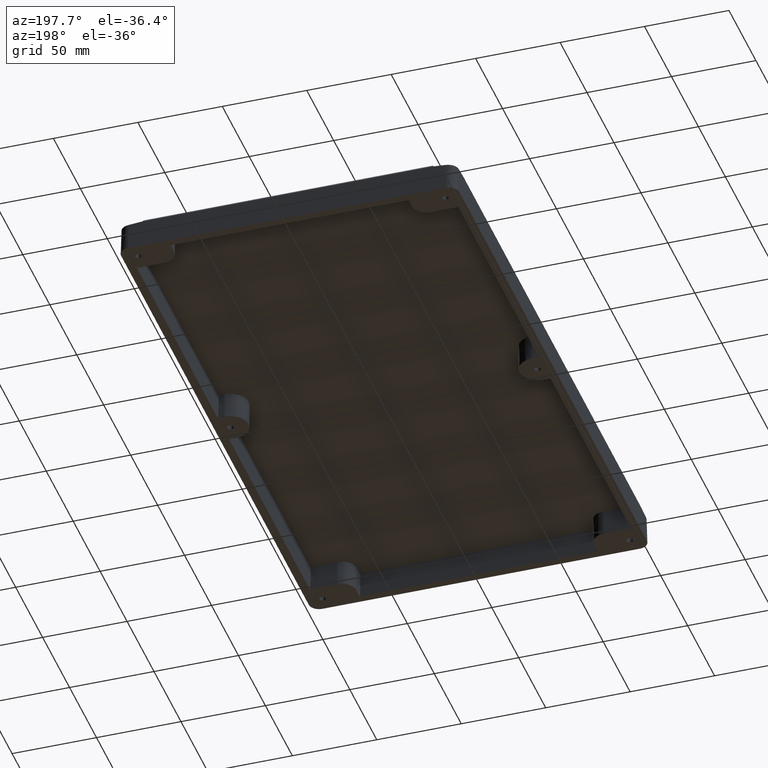
[diagram: clean part render]
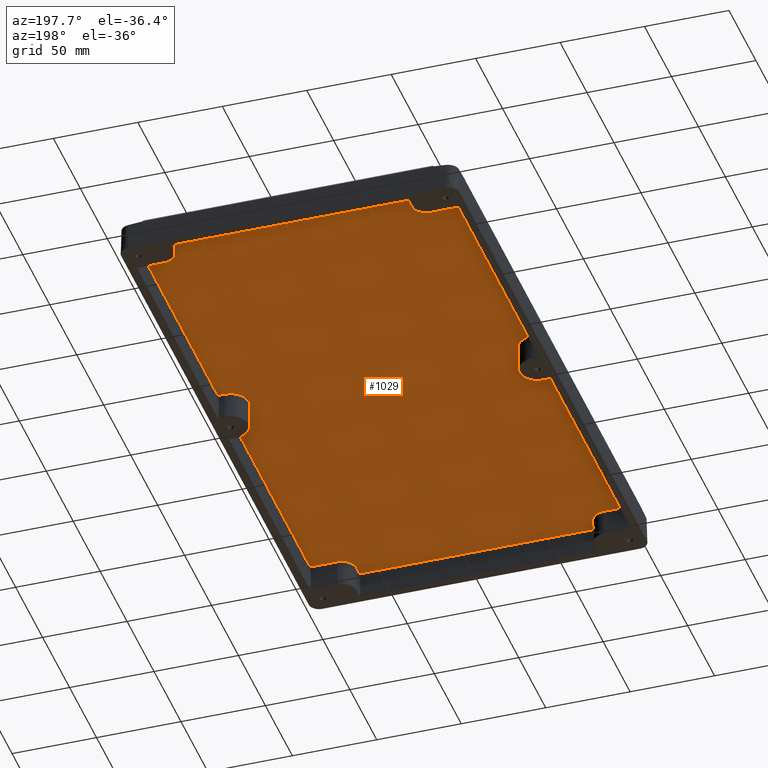
[diagram: same view with one face highlighted and labeled with its STEP entity id]
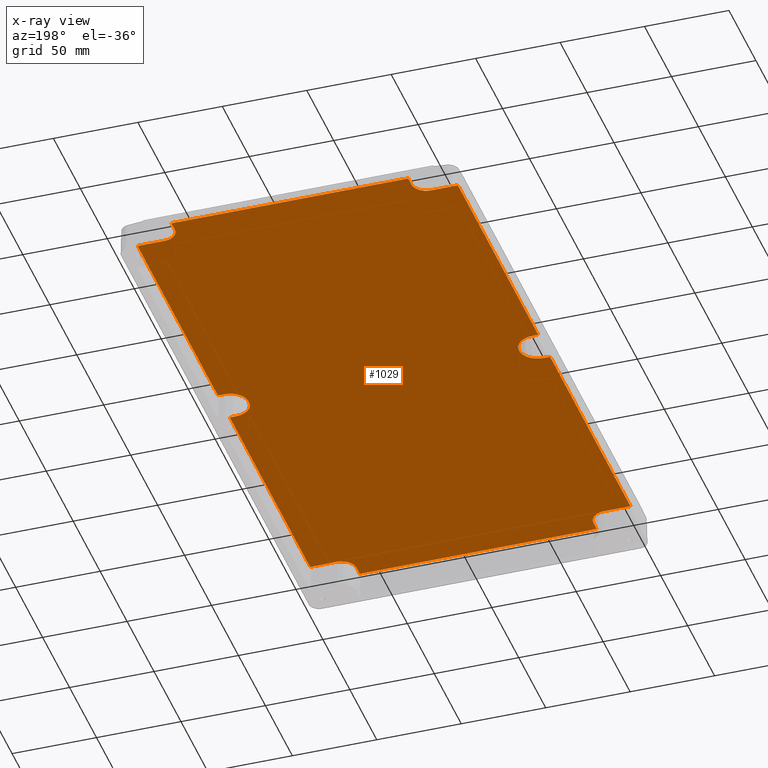
[diagram: x-ray of the same camera — body ghosted, the highlighted face saturated]
A machine part, auxiliary view. The second image highlights one B-rep face of the part: STEP entity #1029.
The next image is the same camera in x-ray: the body ghosted, the highlighted face saturated — about 0% of this face is hidden behind the body in this view.
In plain terms, the highlighted planar face has unit normal (0, 0, 1).
Its self-contained STEP definition (entity closure, byte-faithful):
#49 = CARTESIAN_POINT ( 'NONE',  ( -94.33461251617797000, 10.97546363624380900, 15.50000000000000200 ) ) ;
#115 = VERTEX_POINT ( 'NONE', #5978 ) ;
#130 = CARTESIAN_POINT ( 'NONE',  ( -94.62747959633624400, -160.1245363637562200, 15.50000000000000200 ) ) ;
#175 = AXIS2_PLACEMENT_3D ( 'NONE', #4598, #2398, #6143 ) ;
#218 = VECTOR ( 'NONE', #2260, 1000.000000000000000 ) ;
#223 = AXIS2_PLACEMENT_3D ( 'NONE', #5152, #1967, #5697 ) ;
#231 = ORIENTED_EDGE ( 'NONE', *, *, #4436, .F. ) ;
#260 = EDGE_CURVE ( 'NONE', #2906, #3631, #4735, .T. ) ;
#269 = CARTESIAN_POINT ( 'NONE',  ( 70.12453636375617800, 168.7999999999999800, 15.49999999999999800 ) ) ;
#293 = CARTESIAN_POINT ( 'NONE',  ( -70.12453636375617800, 174.3346125161779700, 15.50000000000000200 ) ) ;
#324 = CARTESIAN_POINT ( 'NONE',  ( -94.83453636375617200, 11.47538748382201300, 15.50000000000000200 ) ) ;
#411 = AXIS2_PLACEMENT_3D ( 'NONE', #1790, #5524, #2332 ) ;
#451 = ORIENTED_EDGE ( 'NONE', *, *, #4621, .F. ) ;
#483 = CARTESIAN_POINT ( 'NONE',  ( 94.62747959633624400, 10.97546363624381100, 15.50000000000000400 ) ) ;
#489 = CARTESIAN_POINT ( 'NONE',  ( -69.62461251617801800, 174.8345363637561700, 15.50000000000000200 ) ) ;
#507 = ORIENTED_EDGE ( 'NONE', *, *, #1366, .F. ) ;
#509 = EDGE_CURVE ( 'NONE', #3631, #4748, #4653, .T. ) ;
#545 = CARTESIAN_POINT ( 'NONE',  ( 90.94999999999998900, -10.97546363624380900, 15.50000000000000200 ) ) ;
#589 = CARTESIAN_POINT ( 'NONE',  ( 94.33461251617797000, 160.1245363637561600, 15.50000000000000200 ) ) ;
#596 = CARTESIAN_POINT ( 'NONE',  ( 70.12453636375619200, -174.6274795963362600, 15.50000000000000200 ) ) ;
#602 = EDGE_CURVE ( 'NONE', #3853, #2285, #4790, .T. ) ;
#639 = CARTESIAN_POINT ( 'NONE',  ( 94.33461251617798400, -160.1245363637561600, 15.50000000000000200 ) ) ;
#650 = VERTEX_POINT ( 'NONE', #5210 ) ;
#656 = CARTESIAN_POINT ( 'NONE',  ( 90.94999999999998900, 10.97546363624380700, 15.50000000000000200 ) ) ;
#725 = CIRCLE ( 'NONE', #3684, 8.675463636243801300 ) ;
#731 = ORIENTED_EDGE ( 'NONE', *, *, #2560, .F. ) ;
#739 = EDGE_CURVE ( 'NONE', #3184, #3524, #6172, .T. ) ;
#808 = CARTESIAN_POINT ( 'NONE',  ( -69.62461251617796200, -174.8345363637561700, 15.50000000000000200 ) ) ;
#812 = ORIENTED_EDGE ( 'NONE', *, *, #992, .F. ) ;
#827 = CIRCLE ( 'NONE', #3163, 8.675463636243815600 ) ;
#851 = VERTEX_POINT ( 'NONE', #639 ) ;
#912 = CARTESIAN_POINT ( 'NONE',  ( -94.33461251617799800, 160.1245363637561600, 15.50000000000000200 ) ) ;
#959 = EDGE_CURVE ( 'NONE', #2813, #1397, #989, .T. ) ;
#960 = EDGE_CURVE ( 'NONE', #5139, #851, #3741, .T. ) ;
#963 = LINE ( 'NONE', #2312, #5203 ) ;
#966 = VERTEX_POINT ( 'NONE', #808 ) ;
#975 = CARTESIAN_POINT ( 'NONE',  ( 94.62747959633621500, -10.97546363624382300, 15.50000000000000000 ) ) ;
#983 = VERTEX_POINT ( 'NONE', #3991 ) ;
#989 = LINE ( 'NONE', #1845, #1155 ) ;
#992 = EDGE_CURVE ( 'NONE', #4639, #4986, #827, .T. ) ;
#1011 = CARTESIAN_POINT ( 'NONE',  ( -78.79999999999999700, 160.1245363637561600, 15.49999999999999800 ) ) ;
#1029 = ADVANCED_FACE ( 'NONE', ( #4891 ), #3006, .F. ) ;
#1130 = DIRECTION ( 'NONE',  ( 1.000000000000000000, -0.0000000000000000000, -0.0000000000000000000 ) ) ;
#1155 = VECTOR ( 'NONE', #5569, 1000.000000000000000 ) ;
#1178 = CARTESIAN_POINT ( 'NONE',  ( 94.33461251617797000, -10.97546363624380900, 15.50000000000000200 ) ) ;
#1186 = LINE ( 'NONE', #545, #5092 ) ;
#1211 = ORIENTED_EDGE ( 'NONE', *, *, #5146, .T. ) ;
#1225 =( BOUNDED_CURVE ( )  B_SPLINE_CURVE ( 3, ( #2928, #6141, #1363, #5083 ),
 .UNSPECIFIED., .F., .T. ) 
 B_SPLINE_CURVE_WITH_KNOTS ( ( 4, 4 ),
 ( 2.356346783439880400, 3.926838523739650400 ),
 .UNSPECIFIED. ) 
 CURVE ( )  GEOMETRIC_REPRESENTATION_ITEM ( )  RATIONAL_B_SPLINE_CURVE ( ( 1.000000000000000000, 0.8048096403827772500, 0.8048096403827772500, 1.000000000000000000 ) ) 
 REPRESENTATION_ITEM ( '' )  );
#1294 = ORIENTED_EDGE ( 'NONE', *, *, #4531, .F. ) ;
#1315 = CARTESIAN_POINT ( 'NONE',  ( 94.83453636375618600, -159.9174795963362200, 15.49999999999999600 ) ) ;
#1329 = EDGE_CURVE ( 'NONE', #3602, #3153, #2741, .T. ) ;
#1351 = ORIENTED_EDGE ( 'NONE', *, *, #6663, .F. ) ;
#1363 = CARTESIAN_POINT ( 'NONE',  ( -70.12453636375617800, -174.6274795963362600, 15.50000000000000200 ) ) ;
#1366 = EDGE_CURVE ( 'NONE', #6537, #2653, #1840, .T. ) ;
#1380 = CARTESIAN_POINT ( 'NONE',  ( 70.12453636375616400, 174.6274795963362300, 15.49999999999999800 ) ) ;
#1391 = VERTEX_POINT ( 'NONE', #6473 ) ;
#1397 = VERTEX_POINT ( 'NONE', #2737 ) ;
#1415 = VECTOR ( 'NONE', #5880, 1000.000000000000000 ) ;
#1470 = ORIENTED_EDGE ( 'NONE', *, *, #6044, .T. ) ;
#1477 = EDGE_CURVE ( 'NONE', #1550, #983, #6190, .T. ) ;
#1544 = CIRCLE ( 'NONE', #2812, 10.97546363624381300 ) ;
#1545 = ORIENTED_EDGE ( 'NONE', *, *, #5038, .F. ) ;
#1550 = VERTEX_POINT ( 'NONE', #1861 ) ;
#1560 = CARTESIAN_POINT ( 'NONE',  ( -94.83453636375617200, 11.47538748382201300, 15.50000000000000200 ) ) ;
#1569 = CARTESIAN_POINT ( 'NONE',  ( -90.94999999999998900, -10.97546363624380900, 15.50000000000000200 ) ) ;
#1600 = CARTESIAN_POINT ( 'NONE',  ( -69.91747959633629300, 174.8345363637561700, 15.50000000000000200 ) ) ;
#1621 = LINE ( 'NONE', #5626, #5724 ) ;
#1630 = EDGE_CURVE ( 'NONE', #6820, #3128, #1729, .T. ) ;
#1635 = CARTESIAN_POINT ( 'NONE',  ( 70.42999999999999300, -174.8345363637561700, 15.50000000000000200 ) ) ;
#1659 = VECTOR ( 'NONE', #6545, 1000.000000000000000 ) ;
#1692 = CARTESIAN_POINT ( 'NONE',  ( -94.83453636375617200, -159.6246125161780200, 15.50000000000000200 ) ) ;
#1701 = CARTESIAN_POINT ( 'NONE',  ( -94.33461251617797000, -160.1245363637561600, 15.50000000000000200 ) ) ;
#1729 =( BOUNDED_CURVE ( )  B_SPLINE_CURVE ( 3, ( #5334, #4786, #1600, #2144 ),
 .UNSPECIFIED., .F., .T. ) 
 B_SPLINE_CURVE_WITH_KNOTS ( ( 4, 4 ),
 ( 2.356346783439880400, 3.926838523739650400 ),
 .UNSPECIFIED. ) 
 CURVE ( )  GEOMETRIC_REPRESENTATION_ITEM ( )  RATIONAL_B_SPLINE_CURVE ( ( 1.000000000000000000, 0.8048096403827772500, 0.8048096403827772500, 1.000000000000000000 ) ) 
 REPRESENTATION_ITEM ( '' )  );
#1732 = CARTESIAN_POINT ( 'NONE',  ( -94.83453636375618600, -159.9174795963362500, 15.50000000000000200 ) ) ;
#1737 = VERTEX_POINT ( 'NONE', #1692 ) ;
#1743 = VERTEX_POINT ( 'NONE', #1178 ) ;
#1779 = CARTESIAN_POINT ( 'NONE',  ( -94.33461251617797000, -160.1245363637561600, 15.50000000000000200 ) ) ;
#1790 = CARTESIAN_POINT ( 'NONE',  ( 78.79999999999999700, -168.7999999999999800, 15.50000000000000200 ) ) ;
#1794 = EDGE_CURVE ( 'NONE', #650, #4639, #4495, .T. ) ;
#1833 = CARTESIAN_POINT ( 'NONE',  ( -78.79999999999999700, -160.1245363637561600, 15.50000000000000200 ) ) ;
#1840 = LINE ( 'NONE', #5921, #5594 ) ;
#1845 = CARTESIAN_POINT ( 'NONE',  ( -70.12453636375617800, -175.1399999999999900, 15.50000000000000200 ) ) ;
#1846 = CARTESIAN_POINT ( 'NONE',  ( -70.12453636375617800, 175.1399999999999900, 15.50000000000000200 ) ) ;
#1855 = EDGE_CURVE ( 'NONE', #5139, #2576, #4152, .T. ) ;
#1861 = CARTESIAN_POINT ( 'NONE',  ( 70.12453636375617800, -168.7999999999999800, 15.50000000000000200 ) ) ;
#1869 = DIRECTION ( 'NONE',  ( 0.0000000000000000000, 1.000000000000000000, -0.0000000000000000000 ) ) ;
#1907 = CARTESIAN_POINT ( 'NONE',  ( -90.94999999999998900, 0.0000000000000000000, 15.50000000000000200 ) ) ;
#1933 = CARTESIAN_POINT ( 'NONE',  ( -78.79999999999999700, 160.1245363637561600, 15.50000000000000200 ) ) ;
#1939 = EDGE_CURVE ( 'NONE', #3405, #1550, #2577, .T. ) ;
#1957 = EDGE_CURVE ( 'NONE', #966, #1397, #1225, .T. ) ;
#1967 = DIRECTION ( 'NONE',  ( 0.0000000000000000000, 0.0000000000000000000, 1.000000000000000000 ) ) ;
#1976 = CARTESIAN_POINT ( 'NONE',  ( -94.83453636375617200, -11.47538748382201300, 15.50000000000000200 ) ) ;
#2007 = VERTEX_POINT ( 'NONE', #4595 ) ;
#2041 = CARTESIAN_POINT ( 'NONE',  ( 94.33461251617797000, -10.97546363624380900, 15.50000000000000200 ) ) ;
#2083 = ORIENTED_EDGE ( 'NONE', *, *, #1939, .F. ) ;
#2104 = DIRECTION ( 'NONE',  ( -1.000000000000000000, -0.0000000000000000000, -0.0000000000000000000 ) ) ;
#2106 = CARTESIAN_POINT ( 'NONE',  ( 70.42999999999999300, 174.8345363637561700, 15.50000000000000200 ) ) ;
#2114 = ORIENTED_EDGE ( 'NONE', *, *, #5475, .F. ) ;
#2117 = EDGE_CURVE ( 'NONE', #4986, #2285, #2820, .T. ) ;
#2144 = CARTESIAN_POINT ( 'NONE',  ( -69.62461251617801800, 174.8345363637561700, 15.50000000000000200 ) ) ;
#2163 = CARTESIAN_POINT ( 'NONE',  ( 70.12453636375617800, 174.3346125161780300, 15.50000000000000200 ) ) ;
#2175 = ORIENTED_EDGE ( 'NONE', *, *, #6869, .F. ) ;
#2192 = CARTESIAN_POINT ( 'NONE',  ( 70.12453636375617800, -174.3346125161780000, 15.50000000000000200 ) ) ;
#2209 = CARTESIAN_POINT ( 'NONE',  ( 94.83453636375617200, 159.6246125161779900, 15.50000000000000200 ) ) ;
#2245 = ORIENTED_EDGE ( 'NONE', *, *, #1329, .T. ) ;
#2260 = DIRECTION ( 'NONE',  ( 1.000000000000000000, 4.140151493978061200E-016, -0.0000000000000000000 ) ) ;
#2273 = CARTESIAN_POINT ( 'NONE',  ( -78.79999999999999700, 168.7999999999999800, 15.50000000000000200 ) ) ;
#2285 = VERTEX_POINT ( 'NONE', #2163 ) ;
#2312 = CARTESIAN_POINT ( 'NONE',  ( -90.94999999999998900, 10.97546363624380900, 15.50000000000000200 ) ) ;
#2320 = ORIENTED_EDGE ( 'NONE', *, *, #2602, .F. ) ;
#2332 = DIRECTION ( 'NONE',  ( 1.000000000000000000, 0.0000000000000000000, 0.0000000000000000000 ) ) ;
#2358 = CARTESIAN_POINT ( 'NONE',  ( -78.79999999999999700, -168.7999999999999800, 15.50000000000000200 ) ) ;
#2373 = DIRECTION ( 'NONE',  ( -0.0000000000000000000, -1.000000000000000000, 0.0000000000000000000 ) ) ;
#2398 = DIRECTION ( 'NONE',  ( -0.0000000000000000000, -0.0000000000000000000, -1.000000000000000000 ) ) ;
#2407 = ORIENTED_EDGE ( 'NONE', *, *, #959, .F. ) ;
#2418 = CARTESIAN_POINT ( 'NONE',  ( 69.91747959633622100, 174.8345363637562000, 15.49999999999999800 ) ) ;
#2438 = DIRECTION ( 'NONE',  ( 1.000000000000000000, 0.0000000000000000000, 0.0000000000000000000 ) ) ;
#2496 = VERTEX_POINT ( 'NONE', #1833 ) ;
#2505 = CARTESIAN_POINT ( 'NONE',  ( -94.62747959633624400, -10.97546363624381300, 15.50000000000000200 ) ) ;
#2550 = LINE ( 'NONE', #3318, #6462 ) ;
#2560 = EDGE_CURVE ( 'NONE', #966, #1391, #2814, .T. ) ;
#2570 = ORIENTED_EDGE ( 'NONE', *, *, #4320, .T. ) ;
#2576 = VERTEX_POINT ( 'NONE', #2695 ) ;
#2577 = LINE ( 'NONE', #4520, #5085 ) ;
#2602 = EDGE_CURVE ( 'NONE', #983, #851, #5190, .T. ) ;
#2640 = DIRECTION ( 'NONE',  ( -1.000000000000000000, -0.0000000000000000000, -0.0000000000000000000 ) ) ;
#2653 = VERTEX_POINT ( 'NONE', #3296 ) ;
#2695 = CARTESIAN_POINT ( 'NONE',  ( 94.83453636375617200, -11.47538748382201300, 15.50000000000000200 ) ) ;
#2737 = CARTESIAN_POINT ( 'NONE',  ( -70.12453636375617800, -174.3346125161780300, 15.50000000000000200 ) ) ;
#2741 =( BOUNDED_CURVE ( )  B_SPLINE_CURVE ( 3, ( #5563, #6689, #3471, #324 ),
 .UNSPECIFIED., .F., .T. ) 
 B_SPLINE_CURVE_WITH_KNOTS ( ( 4, 4 ),
 ( 2.356346783439935900, 3.926838523739660600 ),
 .UNSPECIFIED. ) 
 CURVE ( )  GEOMETRIC_REPRESENTATION_ITEM ( )  RATIONAL_B_SPLINE_CURVE ( ( 1.000000000000000000, 0.8048096403827879100, 0.8048096403827879100, 1.000000000000000000 ) ) 
 REPRESENTATION_ITEM ( '' )  );
#2761 = DIRECTION ( 'NONE',  ( -0.0000000000000000000, -1.000000000000000000, 0.0000000000000000000 ) ) ;
#2802 = DIRECTION ( 'NONE',  ( 1.000000000000000000, 0.0000000000000000000, 0.0000000000000000000 ) ) ;
#2812 = AXIS2_PLACEMENT_3D ( 'NONE', #6126, #2920, #6650 ) ;
#2813 = VERTEX_POINT ( 'NONE', #3389 ) ;
#2814 = LINE ( 'NONE', #1635, #1415 ) ;
#2820 = LINE ( 'NONE', #3607, #5320 ) ;
#2881 =( BOUNDED_CURVE ( )  B_SPLINE_CURVE ( 3, ( #3624, #6761, #483, #4174 ),
 .UNSPECIFIED., .F., .T. ) 
 B_SPLINE_CURVE_WITH_KNOTS ( ( 4, 4 ),
 ( 2.356346783439925700, 3.926838523739650400 ),
 .UNSPECIFIED. ) 
 CURVE ( )  GEOMETRIC_REPRESENTATION_ITEM ( )  RATIONAL_B_SPLINE_CURVE ( ( 1.000000000000000000, 0.8048096403827879100, 0.8048096403827879100, 1.000000000000000000 ) ) 
 REPRESENTATION_ITEM ( '' )  );
#2887 = DIRECTION ( 'NONE',  ( 1.000000000000000000, 0.0000000000000000000, 0.0000000000000000000 ) ) ;
#2902 = CARTESIAN_POINT ( 'NONE',  ( 94.62747959633625800, -160.1245363637561900, 15.49999999999999600 ) ) ;
#2906 = VERTEX_POINT ( 'NONE', #3503 ) ;
#2909 = ORIENTED_EDGE ( 'NONE', *, *, #509, .F. ) ;
#2920 = DIRECTION ( 'NONE',  ( -0.0000000000000000000, -0.0000000000000000000, -1.000000000000000000 ) ) ;
#2928 = CARTESIAN_POINT ( 'NONE',  ( -69.62461251617796200, -174.8345363637561700, 15.50000000000000200 ) ) ;
#2946 = CARTESIAN_POINT ( 'NONE',  ( 78.79999999999999700, 168.7999999999999800, 15.50000000000000200 ) ) ;
#2970 = LINE ( 'NONE', #2106, #4210 ) ;
#3006 = PLANE ( 'NONE',  #223 ) ;
#3016 = CARTESIAN_POINT ( 'NONE',  ( -94.83453636375618600, 159.6246125161779600, 15.50000000000000200 ) ) ;
#3075 = ORIENTED_EDGE ( 'NONE', *, *, #5115, .T. ) ;
#3091 = CARTESIAN_POINT ( 'NONE',  ( 94.83453636375617200, -11.47538748382201300, 15.50000000000000200 ) ) ;
#3110 = ORIENTED_EDGE ( 'NONE', *, *, #1855, .F. ) ;
#3128 = VERTEX_POINT ( 'NONE', #489 ) ;
#3153 = VERTEX_POINT ( 'NONE', #1560 ) ;
#3163 = AXIS2_PLACEMENT_3D ( 'NONE', #2946, #6693, #3478 ) ;
#3178 = ORIENTED_EDGE ( 'NONE', *, *, #739, .F. ) ;
#3180 = CARTESIAN_POINT ( 'NONE',  ( 94.33461251617798400, 10.97546363624380900, 15.50000000000000200 ) ) ;
#3184 = VERTEX_POINT ( 'NONE', #4253 ) ;
#3246 = CARTESIAN_POINT ( 'NONE',  ( 69.62461251617799000, -174.8345363637561700, 15.50000000000000200 ) ) ;
#3296 = CARTESIAN_POINT ( 'NONE',  ( 94.83453636375617200, 159.6246125161779900, 15.50000000000000200 ) ) ;
#3318 = CARTESIAN_POINT ( 'NONE',  ( -78.79999999999999700, -160.1245363637561600, 15.50000000000000200 ) ) ;
#3389 = CARTESIAN_POINT ( 'NONE',  ( -70.12453636375617800, -168.7999999999999800, 15.49999999999999800 ) ) ;
#3405 = VERTEX_POINT ( 'NONE', #5523 ) ;
#3407 = ORIENTED_EDGE ( 'NONE', *, *, #1957, .T. ) ;
#3428 = AXIS2_PLACEMENT_3D ( 'NONE', #2273, #6008, #2802 ) ;
#3445 = LINE ( 'NONE', #1846, #4548 ) ;
#3471 = CARTESIAN_POINT ( 'NONE',  ( -94.83453636375615800, 11.18252040366376200, 15.50000000000000000 ) ) ;
#3478 = DIRECTION ( 'NONE',  ( 1.000000000000000000, 0.0000000000000000000, 0.0000000000000000000 ) ) ;
#3503 = CARTESIAN_POINT ( 'NONE',  ( -79.97453636375617200, 0.0000000000000000000, 15.50000000000000200 ) ) ;
#3524 = VERTEX_POINT ( 'NONE', #1011 ) ;
#3554 = ORIENTED_EDGE ( 'NONE', *, *, #960, .T. ) ;
#3578 = EDGE_CURVE ( 'NONE', #1743, #6415, #1186, .T. ) ;
#3602 = VERTEX_POINT ( 'NONE', #49 ) ;
#3607 = CARTESIAN_POINT ( 'NONE',  ( 70.12453636375617800, 168.7999999999999800, 15.50000000000000200 ) ) ;
#3624 = CARTESIAN_POINT ( 'NONE',  ( 94.83453636375617200, 11.47538748382200400, 15.50000000000000200 ) ) ;
#3631 = VERTEX_POINT ( 'NONE', #5914 ) ;
#3642 = EDGE_CURVE ( 'NONE', #650, #2653, #6814, .T. ) ;
#3684 = AXIS2_PLACEMENT_3D ( 'NONE', #2358, #6098, #2887 ) ;
#3741 =( BOUNDED_CURVE ( )  B_SPLINE_CURVE ( 3, ( #5027, #1315, #2902, #6639 ),
 .UNSPECIFIED., .F., .T. ) 
 B_SPLINE_CURVE_WITH_KNOTS ( ( 4, 4 ),
 ( 2.356346783439880800, 3.926838523739649900 ),
 .UNSPECIFIED. ) 
 CURVE ( )  GEOMETRIC_REPRESENTATION_ITEM ( )  RATIONAL_B_SPLINE_CURVE ( ( 1.000000000000000000, 0.8048096403827775800, 0.8048096403827775800, 1.000000000000000000 ) ) 
 REPRESENTATION_ITEM ( '' )  );
#3790 = CARTESIAN_POINT ( 'NONE',  ( -94.83453636375617200, -160.4299999999999800, 15.50000000000000200 ) ) ;
#3853 = VERTEX_POINT ( 'NONE', #6128 ) ;
#3854 = ORIENTED_EDGE ( 'NONE', *, *, #1794, .F. ) ;
#3933 = ORIENTED_EDGE ( 'NONE', *, *, #260, .F. ) ;
#3962 = CARTESIAN_POINT ( 'NONE',  ( -90.94999999999998900, 10.97546363624380900, 15.50000000000000200 ) ) ;
#3979 = CARTESIAN_POINT ( 'NONE',  ( 78.79999999999999700, 160.1245363637561400, 15.50000000000000200 ) ) ;
#3991 = CARTESIAN_POINT ( 'NONE',  ( 78.79999999999999700, -160.1245363637561600, 15.49999999999999800 ) ) ;
#4019 = DIRECTION ( 'NONE',  ( 9.266685234918844100E-017, -1.000000000000000000, -0.0000000000000000000 ) ) ;
#4079 = EDGE_CURVE ( 'NONE', #2007, #4748, #6478, .T. ) ;
#4082 = CARTESIAN_POINT ( 'NONE',  ( -94.62747959633625800, 160.1245363637561600, 15.50000000000000200 ) ) ;
#4104 = VERTEX_POINT ( 'NONE', #6784 ) ;
#4125 = CIRCLE ( 'NONE', #6482, 10.97546363624381300 ) ;
#4152 = LINE ( 'NONE', #6066, #6831 ) ;
#4157 = DIRECTION ( 'NONE',  ( 0.0000000000000000000, 1.000000000000000000, -0.0000000000000000000 ) ) ;
#4174 = CARTESIAN_POINT ( 'NONE',  ( 94.33461251617798400, 10.97546363624380900, 15.50000000000000200 ) ) ;
#4196 = ORIENTED_EDGE ( 'NONE', *, *, #4079, .T. ) ;
#4197 =( BOUNDED_CURVE ( )  B_SPLINE_CURVE ( 3, ( #1701, #130, #1732, #5457 ),
 .UNSPECIFIED., .F., .T. ) 
 B_SPLINE_CURVE_WITH_KNOTS ( ( 4, 4 ),
 ( 2.356346783439908300, 3.926838523739649900 ),
 .UNSPECIFIED. ) 
 CURVE ( )  GEOMETRIC_REPRESENTATION_ITEM ( )  RATIONAL_B_SPLINE_CURVE ( ( 1.000000000000000000, 0.8048096403827840200, 0.8048096403827840200, 1.000000000000000000 ) ) 
 REPRESENTATION_ITEM ( '' )  );
#4210 = VECTOR ( 'NONE', #2640, 1000.000000000000000 ) ;
#4219 = CARTESIAN_POINT ( 'NONE',  ( 94.83453636375617200, 11.47538748382200400, 15.50000000000000200 ) ) ;
#4252 = DIRECTION ( 'NONE',  ( -1.000000000000000000, -0.0000000000000000000, -0.0000000000000000000 ) ) ;
#4253 = CARTESIAN_POINT ( 'NONE',  ( -70.12453636375617800, 168.7999999999999800, 15.50000000000000200 ) ) ;
#4301 = VERTEX_POINT ( 'NONE', #6408 ) ;
#4320 = EDGE_CURVE ( 'NONE', #3405, #1391, #6015, .T. ) ;
#4436 = EDGE_CURVE ( 'NONE', #5446, #2496, #2550, .T. ) ;
#4457 =( BOUNDED_CURVE ( )  B_SPLINE_CURVE ( 3, ( #2041, #975, #6307, #3091 ),
 .UNSPECIFIED., .F., .F. ) 
 B_SPLINE_CURVE_WITH_KNOTS ( ( 4, 4 ),
 ( 2.356346783439935900, 3.926838523739660600 ),
 .UNSPECIFIED. ) 
 CURVE ( )  GEOMETRIC_REPRESENTATION_ITEM ( )  RATIONAL_B_SPLINE_CURVE ( ( 1.000000000000000000, 0.8048096403827879100, 0.8048096403827879100, 1.000000000000000000 ) ) 
 REPRESENTATION_ITEM ( '' )  );
#4493 = EDGE_LOOP ( 'NONE', ( #6752, #1211, #3110, #3554, #2320, #4549, #2083, #2570, #731, #3407, #2407, #2114, #231, #6486, #5122, #4196, #2909, #3933, #1545, #4584, #2245, #5885, #3075, #2175, #3178, #1294, #5390, #4771, #6724, #6833, #812, #3854, #5675, #507, #1470, #1351, #451 ) ) ;
#4495 = LINE ( 'NONE', #6024, #1659 ) ;
#4520 = CARTESIAN_POINT ( 'NONE',  ( 70.12453636375617800, -175.1399999999999900, 15.50000000000000200 ) ) ;
#4531 = EDGE_CURVE ( 'NONE', #6820, #3184, #3445, .T. ) ;
#4548 = VECTOR ( 'NONE', #2373, 1000.000000000000000 ) ;
#4549 = ORIENTED_EDGE ( 'NONE', *, *, #1477, .F. ) ;
#4552 =( BOUNDED_CURVE ( )  B_SPLINE_CURVE ( 3, ( #3016, #6225, #4082, #912 ),
 .UNSPECIFIED., .F., .T. ) 
 B_SPLINE_CURVE_WITH_KNOTS ( ( 4, 4 ),
 ( 2.356346783439880400, 3.926838523739650400 ),
 .UNSPECIFIED. ) 
 CURVE ( )  GEOMETRIC_REPRESENTATION_ITEM ( )  RATIONAL_B_SPLINE_CURVE ( ( 1.000000000000000000, 0.8048096403827772500, 0.8048096403827772500, 1.000000000000000000 ) ) 
 REPRESENTATION_ITEM ( '' )  );
#4563 = CARTESIAN_POINT ( 'NONE',  ( 69.62461251617797600, 174.8345363637561700, 15.50000000000000200 ) ) ;
#4584 = ORIENTED_EDGE ( 'NONE', *, *, #5856, .F. ) ;
#4595 = CARTESIAN_POINT ( 'NONE',  ( -94.83453636375617200, -11.47538748382201300, 15.50000000000000200 ) ) ;
#4598 = CARTESIAN_POINT ( 'NONE',  ( -90.94999999999998900, 0.0000000000000000000, 15.50000000000000200 ) ) ;
#4621 = EDGE_CURVE ( 'NONE', #6415, #115, #1544, .T. ) ;
#4639 = VERTEX_POINT ( 'NONE', #3979 ) ;
#4653 = LINE ( 'NONE', #1569, #6077 ) ;
#4679 = VECTOR ( 'NONE', #5662, 1000.000000000000000 ) ;
#4682 = CARTESIAN_POINT ( 'NONE',  ( 94.83453636375617200, -159.6246125161779600, 15.50000000000000200 ) ) ;
#4735 = CIRCLE ( 'NONE', #175, 10.97546363624381300 ) ;
#4748 = VERTEX_POINT ( 'NONE', #6758 ) ;
#4771 = ORIENTED_EDGE ( 'NONE', *, *, #4787, .F. ) ;
#4786 = CARTESIAN_POINT ( 'NONE',  ( -70.12453636375622100, 174.6274795963362600, 15.50000000000000200 ) ) ;
#4787 = EDGE_CURVE ( 'NONE', #3853, #3128, #2970, .T. ) ;
#4790 =( BOUNDED_CURVE ( )  B_SPLINE_CURVE ( 3, ( #4563, #2418, #1380, #5100 ),
 .UNSPECIFIED., .F., .F. ) 
 B_SPLINE_CURVE_WITH_KNOTS ( ( 4, 4 ),
 ( 2.356346783439935900, 3.926838523739650400 ),
 .UNSPECIFIED. ) 
 CURVE ( )  GEOMETRIC_REPRESENTATION_ITEM ( )  RATIONAL_B_SPLINE_CURVE ( ( 1.000000000000000000, 0.8048096403827902400, 0.8048096403827902400, 1.000000000000000000 ) ) 
 REPRESENTATION_ITEM ( '' )  );
#4844 = CARTESIAN_POINT ( 'NONE',  ( 78.79999999999999700, -160.1245363637561600, 15.50000000000000200 ) ) ;
#4854 = CARTESIAN_POINT ( 'NONE',  ( 94.62747959633620100, 160.1245363637561900, 15.50000000000000200 ) ) ;
#4891 = FACE_OUTER_BOUND ( 'NONE', #4493, .T. ) ;
#4986 = VERTEX_POINT ( 'NONE', #269 ) ;
#5014 = VECTOR ( 'NONE', #1130, 1000.000000000000000 ) ;
#5027 = CARTESIAN_POINT ( 'NONE',  ( 94.83453636375617200, -159.6246125161779600, 15.50000000000000200 ) ) ;
#5038 = EDGE_CURVE ( 'NONE', #5507, #2906, #4125, .T. ) ;
#5083 = CARTESIAN_POINT ( 'NONE',  ( -70.12453636375617800, -174.3346125161780300, 15.50000000000000200 ) ) ;
#5085 = VECTOR ( 'NONE', #1869, 1000.000000000000000 ) ;
#5092 = VECTOR ( 'NONE', #4252, 1000.000000000000000 ) ;
#5100 = CARTESIAN_POINT ( 'NONE',  ( 70.12453636375617800, 174.3346125161780300, 15.50000000000000200 ) ) ;
#5115 = EDGE_CURVE ( 'NONE', #4301, #4104, #4552, .T. ) ;
#5122 = ORIENTED_EDGE ( 'NONE', *, *, #5786, .F. ) ;
#5139 = VERTEX_POINT ( 'NONE', #4682 ) ;
#5146 = EDGE_CURVE ( 'NONE', #1743, #2576, #4457, .T. ) ;
#5152 = CARTESIAN_POINT ( 'NONE',  ( 0.0000000000000000000, 0.0000000000000000000, 15.50000000000000000 ) ) ;
#5163 = CARTESIAN_POINT ( 'NONE',  ( -94.83453636375615800, -11.18252040366376000, 15.50000000000000200 ) ) ;
#5190 = LINE ( 'NONE', #4844, #5014 ) ;
#5203 = VECTOR ( 'NONE', #6038, 1000.000000000000000 ) ;
#5210 = CARTESIAN_POINT ( 'NONE',  ( 94.33461251617797000, 160.1245363637561600, 15.50000000000000200 ) ) ;
#5213 = CARTESIAN_POINT ( 'NONE',  ( 90.94999999999998900, -10.97546363624380700, 15.50000000000000200 ) ) ;
#5285 = VERTEX_POINT ( 'NONE', #3180 ) ;
#5320 = VECTOR ( 'NONE', #4157, 1000.000000000000000 ) ;
#5334 = CARTESIAN_POINT ( 'NONE',  ( -70.12453636375617800, 174.3346125161779700, 15.50000000000000200 ) ) ;
#5362 = VECTOR ( 'NONE', #2761, 1000.000000000000000 ) ;
#5376 = EDGE_CURVE ( 'NONE', #5446, #1737, #4197, .T. ) ;
#5390 = ORIENTED_EDGE ( 'NONE', *, *, #1630, .T. ) ;
#5394 = CARTESIAN_POINT ( 'NONE',  ( 94.83453636375615800, 159.9174795963362200, 15.50000000000000200 ) ) ;
#5446 = VERTEX_POINT ( 'NONE', #1779 ) ;
#5457 = CARTESIAN_POINT ( 'NONE',  ( -94.83453636375617200, -159.6246125161780200, 15.50000000000000200 ) ) ;
#5475 = EDGE_CURVE ( 'NONE', #2496, #2813, #725, .T. ) ;
#5507 = VERTEX_POINT ( 'NONE', #3962 ) ;
#5523 = CARTESIAN_POINT ( 'NONE',  ( 70.12453636375617800, -174.3346125161780000, 15.50000000000000200 ) ) ;
#5524 = DIRECTION ( 'NONE',  ( -0.0000000000000000000, -0.0000000000000000000, -1.000000000000000000 ) ) ;
#5525 = DIRECTION ( 'NONE',  ( 0.0000000000000000000, 1.000000000000000000, -0.0000000000000000000 ) ) ;
#5535 = LINE ( 'NONE', #3790, #5362 ) ;
#5540 = EDGE_CURVE ( 'NONE', #4301, #3153, #1621, .T. ) ;
#5563 = CARTESIAN_POINT ( 'NONE',  ( -94.33461251617797000, 10.97546363624380900, 15.50000000000000200 ) ) ;
#5569 = DIRECTION ( 'NONE',  ( -0.0000000000000000000, -1.000000000000000000, 0.0000000000000000000 ) ) ;
#5594 = VECTOR ( 'NONE', #6447, 1000.000000000000000 ) ;
#5626 = CARTESIAN_POINT ( 'NONE',  ( -94.83453636375618600, 160.4299999999999800, 15.50000000000000200 ) ) ;
#5630 = DIRECTION ( 'NONE',  ( -0.0000000000000000000, -0.0000000000000000000, -1.000000000000000000 ) ) ;
#5662 = DIRECTION ( 'NONE',  ( -1.000000000000000000, -0.0000000000000000000, -0.0000000000000000000 ) ) ;
#5675 = ORIENTED_EDGE ( 'NONE', *, *, #3642, .T. ) ;
#5697 = DIRECTION ( 'NONE',  ( 1.000000000000000000, 0.0000000000000000000, -0.0000000000000000000 ) ) ;
#5724 = VECTOR ( 'NONE', #4019, 1000.000000000000000 ) ;
#5786 = EDGE_CURVE ( 'NONE', #2007, #1737, #5535, .T. ) ;
#5856 = EDGE_CURVE ( 'NONE', #3602, #5507, #963, .T. ) ;
#5880 = DIRECTION ( 'NONE',  ( 1.000000000000000000, -0.0000000000000000000, -0.0000000000000000000 ) ) ;
#5885 = ORIENTED_EDGE ( 'NONE', *, *, #5540, .F. ) ;
#5914 = CARTESIAN_POINT ( 'NONE',  ( -90.94999999999998900, -10.97546363624380900, 15.49999999999999800 ) ) ;
#5921 = CARTESIAN_POINT ( 'NONE',  ( 94.83453636375617200, 10.67000000000000000, 15.50000000000000200 ) ) ;
#5934 = LINE ( 'NONE', #1933, #4679 ) ;
#5978 = CARTESIAN_POINT ( 'NONE',  ( 90.94999999999998900, 10.97546363624380700, 15.49999999999999800 ) ) ;
#6008 = DIRECTION ( 'NONE',  ( -0.0000000000000000000, -0.0000000000000000000, -1.000000000000000000 ) ) ;
#6015 =( BOUNDED_CURVE ( )  B_SPLINE_CURVE ( 3, ( #2192, #596, #6455, #3246 ),
 .UNSPECIFIED., .F., .T. ) 
 B_SPLINE_CURVE_WITH_KNOTS ( ( 4, 4 ),
 ( 2.356346783439880400, 3.926838523739650400 ),
 .UNSPECIFIED. ) 
 CURVE ( )  GEOMETRIC_REPRESENTATION_ITEM ( )  RATIONAL_B_SPLINE_CURVE ( ( 1.000000000000000000, 0.8048096403827772500, 0.8048096403827772500, 1.000000000000000000 ) ) 
 REPRESENTATION_ITEM ( '' )  );
#6024 = CARTESIAN_POINT ( 'NONE',  ( 95.13999999999998600, 160.1245363637561600, 15.50000000000000200 ) ) ;
#6026 = DIRECTION ( 'NONE',  ( 1.000000000000000000, -0.0000000000000000000, -0.0000000000000000000 ) ) ;
#6038 = DIRECTION ( 'NONE',  ( 1.000000000000000000, -0.0000000000000000000, -0.0000000000000000000 ) ) ;
#6044 = EDGE_CURVE ( 'NONE', #6537, #5285, #2881, .T. ) ;
#6066 = CARTESIAN_POINT ( 'NONE',  ( 94.83453636375617200, -160.4299999999999800, 15.50000000000000200 ) ) ;
#6077 = VECTOR ( 'NONE', #2104, 1000.000000000000000 ) ;
#6098 = DIRECTION ( 'NONE',  ( -0.0000000000000000000, -0.0000000000000000000, -1.000000000000000000 ) ) ;
#6126 = CARTESIAN_POINT ( 'NONE',  ( 90.94999999999998900, 0.0000000000000000000, 15.50000000000000200 ) ) ;
#6128 = CARTESIAN_POINT ( 'NONE',  ( 69.62461251617797600, 174.8345363637561700, 15.50000000000000200 ) ) ;
#6141 = CARTESIAN_POINT ( 'NONE',  ( -69.91747959633622100, -174.8345363637562000, 15.50000000000000200 ) ) ;
#6143 = DIRECTION ( 'NONE',  ( 1.000000000000000000, 0.0000000000000000000, 0.0000000000000000000 ) ) ;
#6172 = CIRCLE ( 'NONE', #3428, 8.675463636243801300 ) ;
#6190 = CIRCLE ( 'NONE', #411, 8.675463636243801300 ) ;
#6212 = LINE ( 'NONE', #656, #218 ) ;
#6225 = CARTESIAN_POINT ( 'NONE',  ( -94.83453636375621400, 159.9174795963362200, 15.50000000000000200 ) ) ;
#6249 = CARTESIAN_POINT ( 'NONE',  ( -94.33461251617798400, -10.97546363624380900, 15.50000000000000200 ) ) ;
#6307 = CARTESIAN_POINT ( 'NONE',  ( 94.83453636375615800, -11.18252040366376200, 15.50000000000000000 ) ) ;
#6408 = CARTESIAN_POINT ( 'NONE',  ( -94.83453636375618600, 159.6246125161779600, 15.50000000000000200 ) ) ;
#6415 = VERTEX_POINT ( 'NONE', #5213 ) ;
#6447 = DIRECTION ( 'NONE',  ( 0.0000000000000000000, 1.000000000000000000, -0.0000000000000000000 ) ) ;
#6455 = CARTESIAN_POINT ( 'NONE',  ( 69.91747959633625000, -174.8345363637562000, 15.50000000000000200 ) ) ;
#6462 = VECTOR ( 'NONE', #6026, 1000.000000000000000 ) ;
#6473 = CARTESIAN_POINT ( 'NONE',  ( 69.62461251617799000, -174.8345363637561700, 15.50000000000000200 ) ) ;
#6478 =( BOUNDED_CURVE ( )  B_SPLINE_CURVE ( 3, ( #1976, #5163, #2505, #6249 ),
 .UNSPECIFIED., .F., .F. ) 
 B_SPLINE_CURVE_WITH_KNOTS ( ( 4, 4 ),
 ( 2.356346783439908300, 3.926838523739650400 ),
 .UNSPECIFIED. ) 
 CURVE ( )  GEOMETRIC_REPRESENTATION_ITEM ( )  RATIONAL_B_SPLINE_CURVE ( ( 1.000000000000000000, 0.8048096403827838000, 0.8048096403827838000, 1.000000000000000000 ) ) 
 REPRESENTATION_ITEM ( '' )  );
#6482 = AXIS2_PLACEMENT_3D ( 'NONE', #1907, #5630, #2438 ) ;
#6486 = ORIENTED_EDGE ( 'NONE', *, *, #5376, .T. ) ;
#6537 = VERTEX_POINT ( 'NONE', #4219 ) ;
#6545 = DIRECTION ( 'NONE',  ( -1.000000000000000000, -1.698627638655381000E-015, 0.0000000000000000000 ) ) ;
#6639 = CARTESIAN_POINT ( 'NONE',  ( 94.33461251617798400, -160.1245363637561600, 15.50000000000000200 ) ) ;
#6650 = DIRECTION ( 'NONE',  ( 1.000000000000000000, 0.0000000000000000000, 0.0000000000000000000 ) ) ;
#6663 = EDGE_CURVE ( 'NONE', #115, #5285, #6212, .T. ) ;
#6689 = CARTESIAN_POINT ( 'NONE',  ( -94.62747959633621500, 10.97546363624382300, 15.50000000000000000 ) ) ;
#6693 = DIRECTION ( 'NONE',  ( -0.0000000000000000000, -0.0000000000000000000, -1.000000000000000000 ) ) ;
#6724 = ORIENTED_EDGE ( 'NONE', *, *, #602, .T. ) ;
#6752 = ORIENTED_EDGE ( 'NONE', *, *, #3578, .F. ) ;
#6758 = CARTESIAN_POINT ( 'NONE',  ( -94.33461251617798400, -10.97546363624380900, 15.50000000000000200 ) ) ;
#6761 = CARTESIAN_POINT ( 'NONE',  ( 94.83453636375615800, 11.18252040366375300, 15.50000000000000400 ) ) ;
#6784 = CARTESIAN_POINT ( 'NONE',  ( -94.33461251617799800, 160.1245363637561600, 15.50000000000000200 ) ) ;
#6814 =( BOUNDED_CURVE ( )  B_SPLINE_CURVE ( 3, ( #589, #4854, #5394, #2209 ),
 .UNSPECIFIED., .F., .F. ) 
 B_SPLINE_CURVE_WITH_KNOTS ( ( 4, 4 ),
 ( 2.356346783439937200, 3.926838523739650800 ),
 .UNSPECIFIED. ) 
 CURVE ( )  GEOMETRIC_REPRESENTATION_ITEM ( )  RATIONAL_B_SPLINE_CURVE ( ( 1.000000000000000000, 0.8048096403827905700, 0.8048096403827905700, 1.000000000000000000 ) ) 
 REPRESENTATION_ITEM ( '' )  );
#6820 = VERTEX_POINT ( 'NONE', #293 ) ;
#6831 = VECTOR ( 'NONE', #5525, 1000.000000000000000 ) ;
#6833 = ORIENTED_EDGE ( 'NONE', *, *, #2117, .F. ) ;
#6869 = EDGE_CURVE ( 'NONE', #3524, #4104, #5934, .T. ) ;